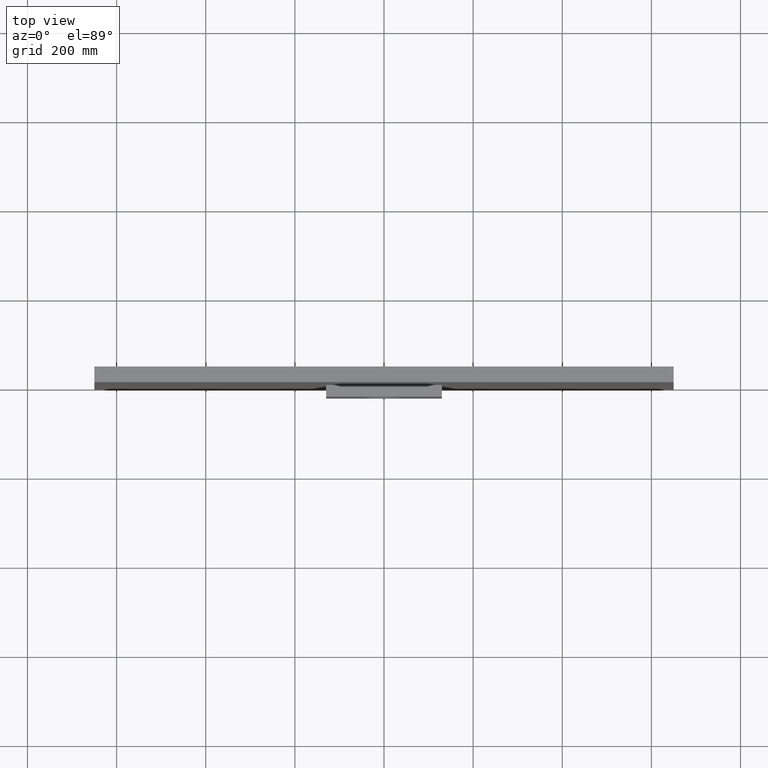
[diagram: clean part render]
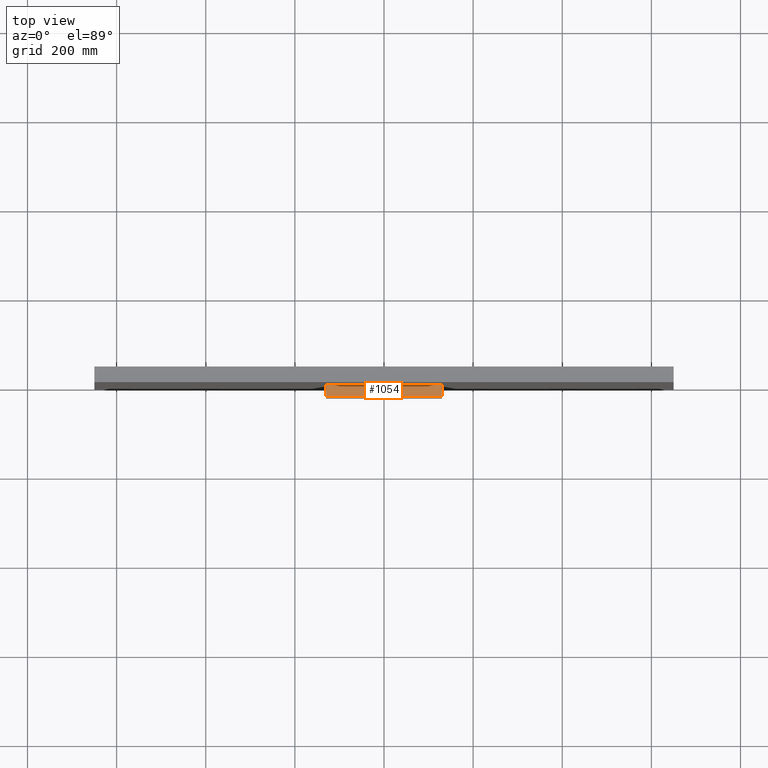
[diagram: same view with one face highlighted and labeled with its STEP entity id]
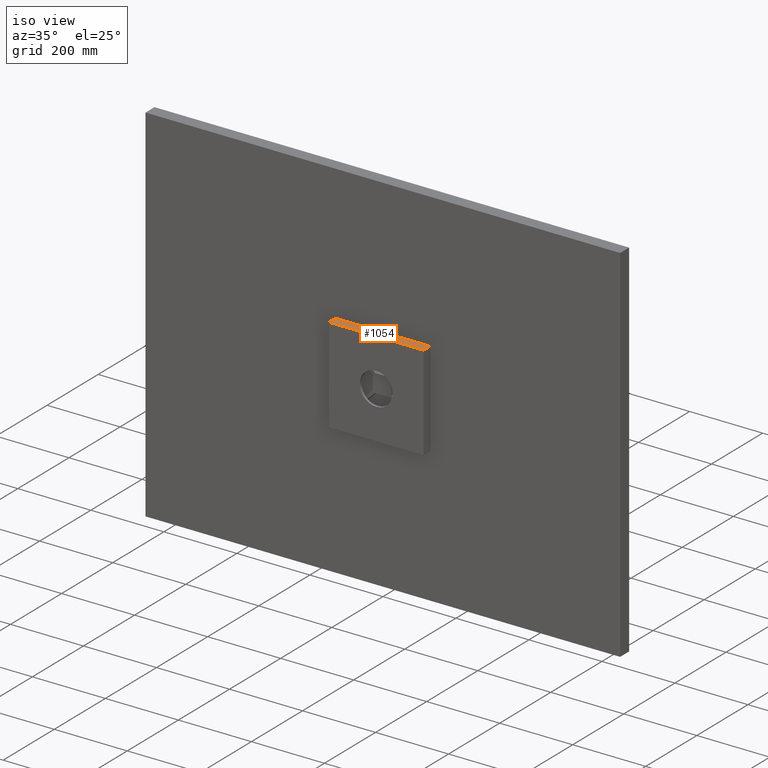
[diagram: same view with one face highlighted and labeled with its STEP entity id]
A machine part, top view. The second image highlights one B-rep face of the part: STEP entity #1054.
A second angle (iso view) of the same face is appended — the face is thin or edge-on in the first view.
In plain terms, the highlighted planar face has unit normal (0, 0, -1).
Its self-contained STEP definition (entity closure, byte-faithful):
#12 = VERTEX_POINT ( 'NONE', #70 ) ;
#70 = CARTESIAN_POINT ( 'NONE',  ( -129.9999999999998900, -26.00000000000000000, 130.0000000000002300 ) ) ;
#156 = ORIENTED_EDGE ( 'NONE', *, *, #1152, .T. ) ;
#364 = CARTESIAN_POINT ( 'NONE',  ( -129.9999999999998900, -26.00000000000000000, 130.0000000000002300 ) ) ;
#431 = CARTESIAN_POINT ( 'NONE',  ( 130.0000000000001100, -26.00000000000000000, 130.0000000000002300 ) ) ;
#441 = VERTEX_POINT ( 'NONE', #1068 ) ;
#591 = LINE ( 'NONE', #2548, #3252 ) ;
#633 = DIRECTION ( 'NONE',  ( -1.000000000000000000, 0.0000000000000000000, -0.0000000000000000000 ) ) ;
#669 = DIRECTION ( 'NONE',  ( 0.0000000000000000000, 0.0000000000000000000, -1.000000000000000000 ) ) ;
#844 = EDGE_CURVE ( 'NONE', #3134, #441, #2025, .T. ) ;
#1038 = ORIENTED_EDGE ( 'NONE', *, *, #844, .T. ) ;
#1054 = ADVANCED_FACE ( 'NONE', ( #1657 ), #1225, .F. ) ;
#1068 = CARTESIAN_POINT ( 'NONE',  ( 130.0000000000001100, 0.0000000000000000000, 130.0000000000002300 ) ) ;
#1143 = VECTOR ( 'NONE', #1828, 1000.000000000000000 ) ;
#1152 = EDGE_CURVE ( 'NONE', #441, #1833, #1251, .T. ) ;
#1225 = PLANE ( 'NONE',  #2035 ) ;
#1251 = LINE ( 'NONE', #1666, #1143 ) ;
#1420 = LINE ( 'NONE', #364, #1805 ) ;
#1657 = FACE_OUTER_BOUND ( 'NONE', #2032, .T. ) ;
#1666 = CARTESIAN_POINT ( 'NONE',  ( -129.9999999999998900, 0.0000000000000000000, 130.0000000000002300 ) ) ;
#1720 = ORIENTED_EDGE ( 'NONE', *, *, #3188, .F. ) ;
#1805 = VECTOR ( 'NONE', #2433, 1000.000000000000000 ) ;
#1828 = DIRECTION ( 'NONE',  ( -1.000000000000000000, -0.0000000000000000000, -0.0000000000000000000 ) ) ;
#1833 = VERTEX_POINT ( 'NONE', #2934 ) ;
#1921 = DIRECTION ( 'NONE',  ( -0.0000000000000000000, 1.000000000000000000, -0.0000000000000000000 ) ) ;
#1970 = VECTOR ( 'NONE', #1921, 1000.000000000000000 ) ;
#2025 = LINE ( 'NONE', #2163, #1970 ) ;
#2032 = EDGE_LOOP ( 'NONE', ( #156, #1720, #2688, #1038 ) ) ;
#2035 = AXIS2_PLACEMENT_3D ( 'NONE', #3116, #669, #633 ) ;
#2163 = CARTESIAN_POINT ( 'NONE',  ( 130.0000000000001100, -26.00000000000000000, 130.0000000000002300 ) ) ;
#2433 = DIRECTION ( 'NONE',  ( -0.0000000000000000000, 1.000000000000000000, -0.0000000000000000000 ) ) ;
#2539 = DIRECTION ( 'NONE',  ( -1.000000000000000000, -0.0000000000000000000, -0.0000000000000000000 ) ) ;
#2548 = CARTESIAN_POINT ( 'NONE',  ( -129.9999999999998900, -26.00000000000000000, 130.0000000000002300 ) ) ;
#2688 = ORIENTED_EDGE ( 'NONE', *, *, #2879, .F. ) ;
#2879 = EDGE_CURVE ( 'NONE', #3134, #12, #591, .T. ) ;
#2934 = CARTESIAN_POINT ( 'NONE',  ( -129.9999999999998900, 0.0000000000000000000, 130.0000000000002300 ) ) ;
#3116 = CARTESIAN_POINT ( 'NONE',  ( -129.9999999999998900, -26.00000000000000000, 130.0000000000002300 ) ) ;
#3134 = VERTEX_POINT ( 'NONE', #431 ) ;
#3188 = EDGE_CURVE ( 'NONE', #12, #1833, #1420, .T. ) ;
#3252 = VECTOR ( 'NONE', #2539, 1000.000000000000000 ) ;